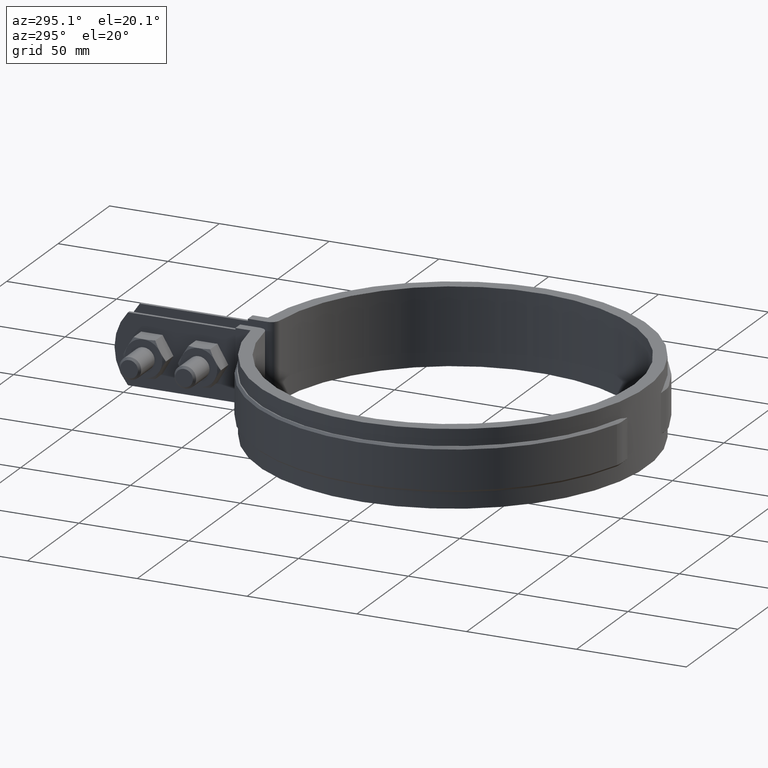
[diagram: clean part render]
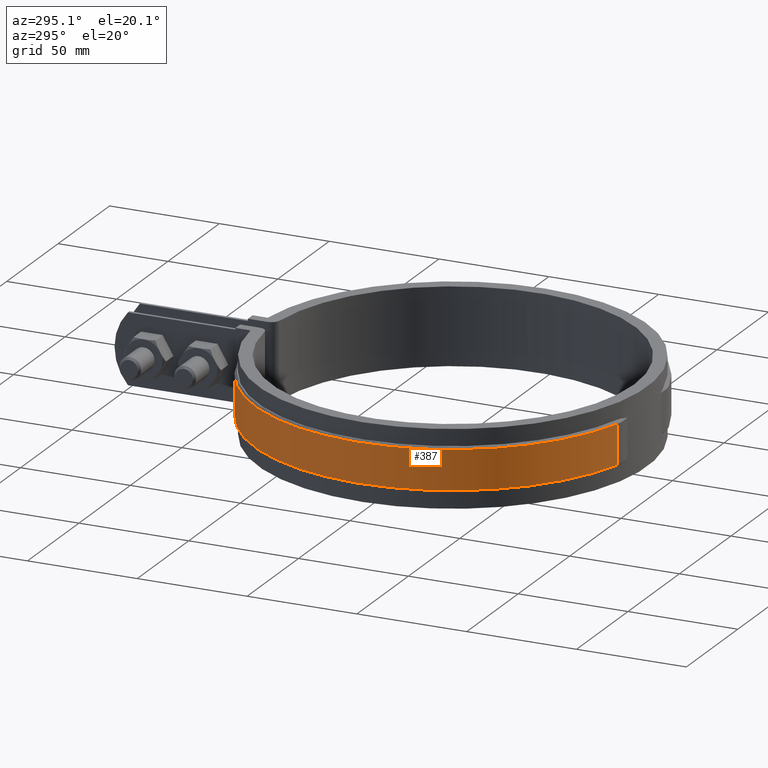
[diagram: same view with one face highlighted and labeled with its STEP entity id]
A machine part, auxiliary view. The second image highlights one B-rep face of the part: STEP entity #387.
In plain terms, the highlighted cylindrical surface (partial cylindrical patch) has radius 90.1 mm, axis along (0, 0, -1).
Its self-contained STEP definition (entity closure, byte-faithful):
#387 = ADVANCED_FACE( '', ( #630 ), #631, .T. );
#630 = FACE_OUTER_BOUND( '', #1716, .T. );
#631 = CYLINDRICAL_SURFACE( '', #1717, 90.1000000000000 );
#1716 = EDGE_LOOP( '', ( #4009, #4010, #4011, #4012 ) );
#1717 = AXIS2_PLACEMENT_3D( '', #4013, #4014, #4015 );
#4009 = ORIENTED_EDGE( '', *, *, #4791, .F. );
#4010 = ORIENTED_EDGE( '', *, *, #4840, .T. );
#4011 = ORIENTED_EDGE( '', *, *, #4810, .T. );
#4012 = ORIENTED_EDGE( '', *, *, #4838, .T. );
#4013 = CARTESIAN_POINT( '', ( 3.46944695195361E-015, 2.77555756156289E-014, -26.0000000000000 ) );
#4014 = DIRECTION( '', ( 0.000000000000000, 0.000000000000000, -1.00000000000000 ) );
#4015 = DIRECTION( '', ( 0.279817321684446, 0.960053262316911, 0.000000000000000 ) );
#4791 = EDGE_CURVE( '', #5306, #5308, #5309, .T. );
#4810 = EDGE_CURVE( '', #5340, #5341, #5342, .T. );
#4838 = EDGE_CURVE( '', #5341, #5308, #5384, .T. );
#4840 = EDGE_CURVE( '', #5306, #5340, #5386, .F. );
#5306 = VERTEX_POINT( '', #8042 );
#5308 = VERTEX_POINT( '', #8047 );
#5309 = LINE( '', #8048, #8049 );
#5340 = VERTEX_POINT( '', #8090 );
#5341 = VERTEX_POINT( '', #8091 );
#5342 = LINE( '', #8092, #8093 );
#5384 = CIRCLE( '', #8148, 90.1000000000000 );
#5386 = CIRCLE( '', #8151, 90.1000000000000 );
#8042 = CARTESIAN_POINT( '', ( -8.40000000000000, 89.7075805046597, -25.0000000000000 ) );
#8047 = CARTESIAN_POINT( '', ( -8.40000000000000, 89.7075805046597, -6.99999999999999 ) );
#8048 = CARTESIAN_POINT( '', ( -8.39999999999998, 89.7075805046597, -26.0000000000000 ) );
#8049 = VECTOR( '', #8842, 1000.00000000000 );
#8090 = CARTESIAN_POINT( '', ( -25.2115406837686, -86.5007989347536, -25.0000000000000 ) );
#8091 = CARTESIAN_POINT( '', ( -25.2115406837686, -86.5007989347536, -6.99999999999999 ) );
#8092 = CARTESIAN_POINT( '', ( -25.2115406837686, -86.5007989347536, -26.0000000000000 ) );
#8093 = VECTOR( '', #8880, 1000.00000000000 );
#8148 = AXIS2_PLACEMENT_3D( '', #8936, #8937, #8938 );
#8151 = AXIS2_PLACEMENT_3D( '', #8940, #8941, #8942 );
#8842 = DIRECTION( '', ( 0.000000000000000, 0.000000000000000, 1.00000000000000 ) );
#8880 = DIRECTION( '', ( 0.000000000000000, 0.000000000000000, 1.00000000000000 ) );
#8936 = CARTESIAN_POINT( '', ( 3.46944695195361E-015, 2.77555756156289E-014, -7.00000000000000 ) );
#8937 = DIRECTION( '', ( 0.000000000000000, 0.000000000000000, -1.00000000000000 ) );
#8938 = DIRECTION( '', ( -1.00000000000000, 0.000000000000000, 0.000000000000000 ) );
#8940 = CARTESIAN_POINT( '', ( 3.46944695195361E-015, 2.77555756156289E-014, -25.0000000000000 ) );
#8941 = DIRECTION( '', ( 0.000000000000000, 0.000000000000000, -1.00000000000000 ) );
#8942 = DIRECTION( '', ( -1.00000000000000, 0.000000000000000, 0.000000000000000 ) );